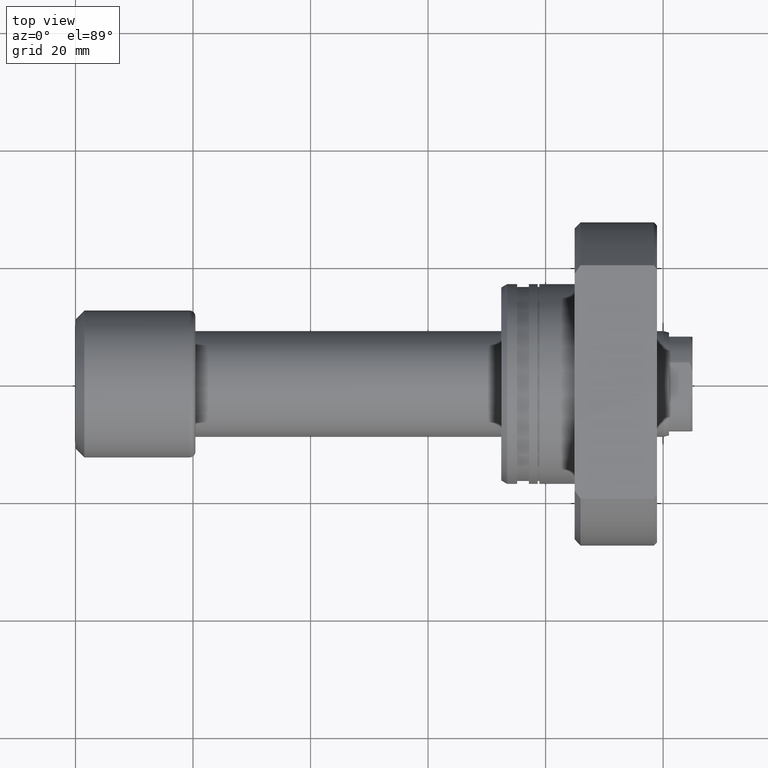
[diagram: clean part render]
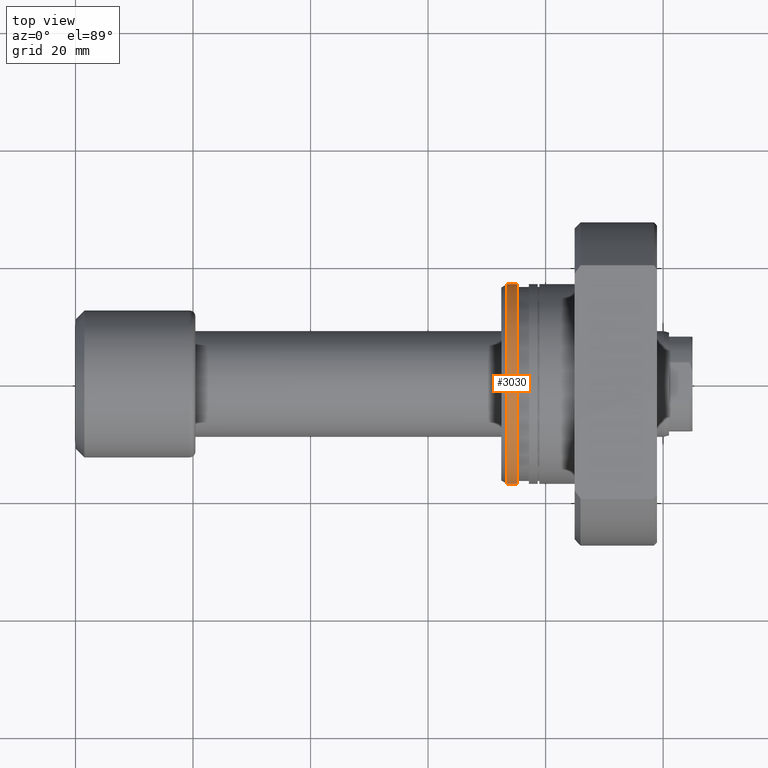
[diagram: same view with one face highlighted and labeled with its STEP entity id]
A machine part, top view. The second image highlights one B-rep face of the part: STEP entity #3030.
In plain terms, the highlighted cylindrical surface (partial cylindrical patch) has radius 17 mm, axis along (1, 0, 0).
Its self-contained STEP definition (entity closure, byte-faithful):
#16 = AXIS2_PLACEMENT_3D ( 'NONE', #2850, #1305, #552 ) ;
#77 = CIRCLE ( 'NONE', #1843, 16.99999999999999645 ) ;
#88 = VERTEX_POINT ( 'NONE', #1368 ) ;
#353 = CARTESIAN_POINT ( 'NONE',  ( 2.699999999999786127, 16.99999999999999645, 0.000000000000000000 ) ) ;
#375 = CARTESIAN_POINT ( 'NONE',  ( 26.50000000000000711, -16.99999999999999645, 2.081899558550499885E-15 ) ) ;
#517 = FACE_OUTER_BOUND ( 'NONE', #1535, .T. ) ;
#552 = DIRECTION ( 'NONE',  ( 0.000000000000000000, 1.000000000000000000, 0.000000000000000000 ) ) ;
#588 = VECTOR ( 'NONE', #2218, 1000.000000000000000 ) ;
#657 = DIRECTION ( 'NONE',  ( -1.275531967630005461E-17, 1.000000000000000000, 0.000000000000000000 ) ) ;
#659 = EDGE_CURVE ( 'NONE', #88, #2836, #745, .T. ) ;
#715 = DIRECTION ( 'NONE',  ( 0.000000000000000000, 1.000000000000000000, 0.000000000000000000 ) ) ;
#728 = ORIENTED_EDGE ( 'NONE', *, *, #849, .F. ) ;
#745 = CIRCLE ( 'NONE', #960, 16.99999999999999645 ) ;
#800 = ORIENTED_EDGE ( 'NONE', *, *, #659, .T. ) ;
#827 = VERTEX_POINT ( 'NONE', #1911 ) ;
#836 = ORIENTED_EDGE ( 'NONE', *, *, #2590, .T. ) ;
#849 = EDGE_CURVE ( 'NONE', #88, #2381, #2908, .T. ) ;
#960 = AXIS2_PLACEMENT_3D ( 'NONE', #1361, #1655, #657 ) ;
#1151 = VECTOR ( 'NONE', #1179, 1000.000000000000000 ) ;
#1179 = DIRECTION ( 'NONE',  ( 1.000000000000000000, 9.242617352055502386E-18, -0.000000000000000000 ) ) ;
#1291 = CYLINDRICAL_SURFACE ( 'NONE', #16, 16.99999999999999645 ) ;
#1305 = DIRECTION ( 'NONE',  ( 1.000000000000000000, 9.242617352055502386E-18, -0.000000000000000000 ) ) ;
#1316 = EDGE_CURVE ( 'NONE', #2381, #827, #77, .T. ) ;
#1361 = CARTESIAN_POINT ( 'NONE',  ( 0.9999999999997857270, 9.242617352053524071E-18, 0.000000000000000000 ) ) ;
#1368 = CARTESIAN_POINT ( 'NONE',  ( 0.9999999999997856159, 16.99999999999999645, 0.000000000000000000 ) ) ;
#1535 = EDGE_LOOP ( 'NONE', ( #800, #836, #2813, #728 ) ) ;
#1655 = DIRECTION ( 'NONE',  ( 1.000000000000000000, 9.242617352055502386E-18, -0.000000000000000000 ) ) ;
#1843 = AXIS2_PLACEMENT_3D ( 'NONE', #2472, #2437, #715 ) ;
#1911 = CARTESIAN_POINT ( 'NONE',  ( 2.699999999999786127, -16.99999999999999645, 2.081899558550499885E-15 ) ) ;
#2218 = DIRECTION ( 'NONE',  ( 1.000000000000000000, 9.242617352055502386E-18, -0.000000000000000000 ) ) ;
#2381 = VERTEX_POINT ( 'NONE', #353 ) ;
#2437 = DIRECTION ( 'NONE',  ( 1.000000000000000000, 9.242617352055502386E-18, -0.000000000000000000 ) ) ;
#2461 = CARTESIAN_POINT ( 'NONE',  ( 26.50000000000000711, 16.99999999999999645, 0.000000000000000000 ) ) ;
#2472 = CARTESIAN_POINT ( 'NONE',  ( 2.699999999999786127, 2.495506685054785763E-17, 0.000000000000000000 ) ) ;
#2590 = EDGE_CURVE ( 'NONE', #2836, #827, #2857, .T. ) ;
#2813 = ORIENTED_EDGE ( 'NONE', *, *, #1316, .F. ) ;
#2836 = VERTEX_POINT ( 'NONE', #2919 ) ;
#2850 = CARTESIAN_POINT ( 'NONE',  ( 26.50000000000000711, 2.449293598294708880E-16, 0.000000000000000000 ) ) ;
#2857 = LINE ( 'NONE', #375, #1151 ) ;
#2908 = LINE ( 'NONE', #2461, #588 ) ;
#2919 = CARTESIAN_POINT ( 'NONE',  ( 0.9999999999997859490, -16.99999999999999645, 2.081899558550499885E-15 ) ) ;
#3030 = ADVANCED_FACE ( 'NONE', ( #517 ), #1291, .T. ) ;